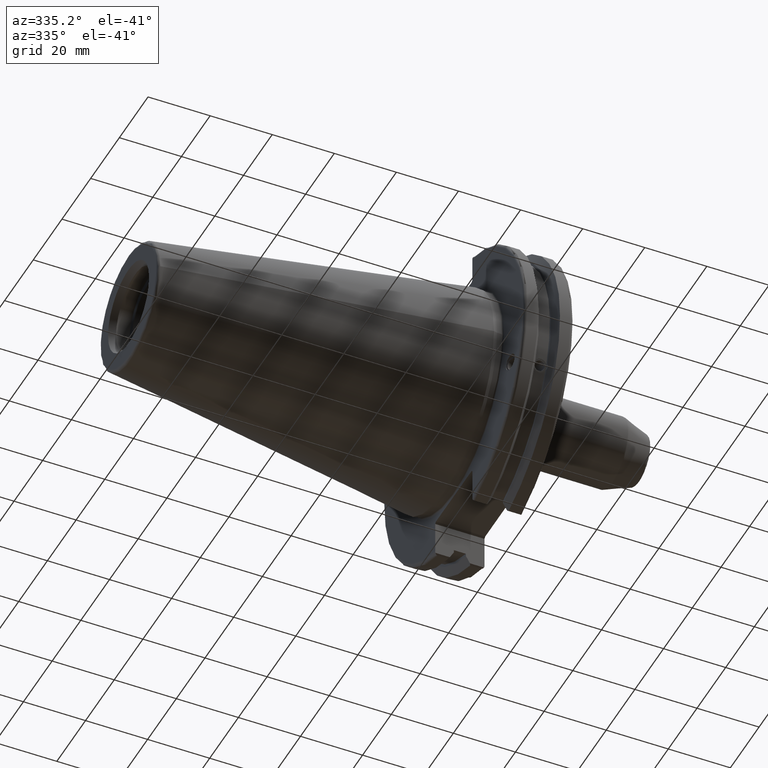
[diagram: clean part render]
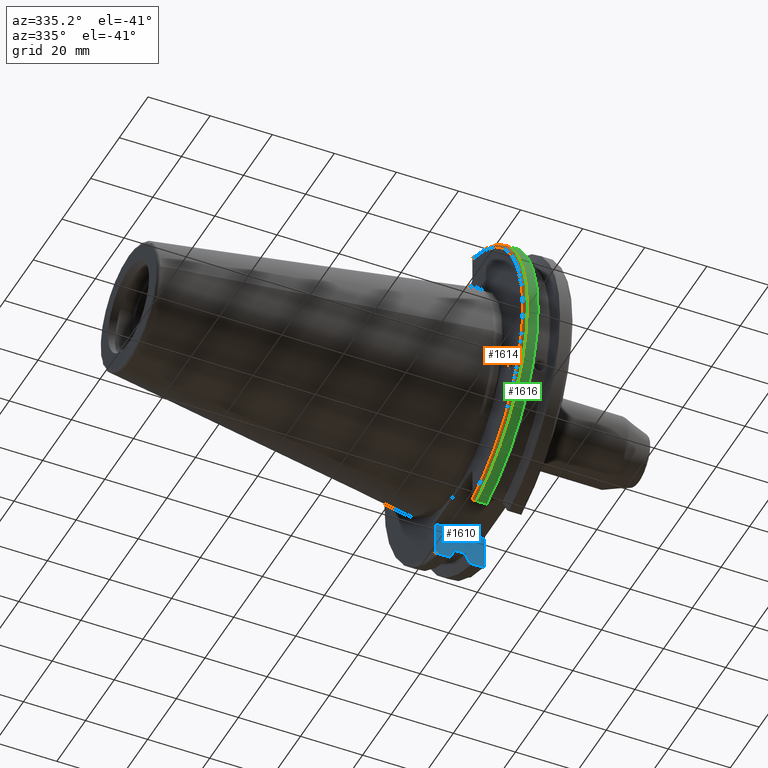
[diagram: same view with three faces highlighted in distinct colors, each labeled with its STEP entity id]
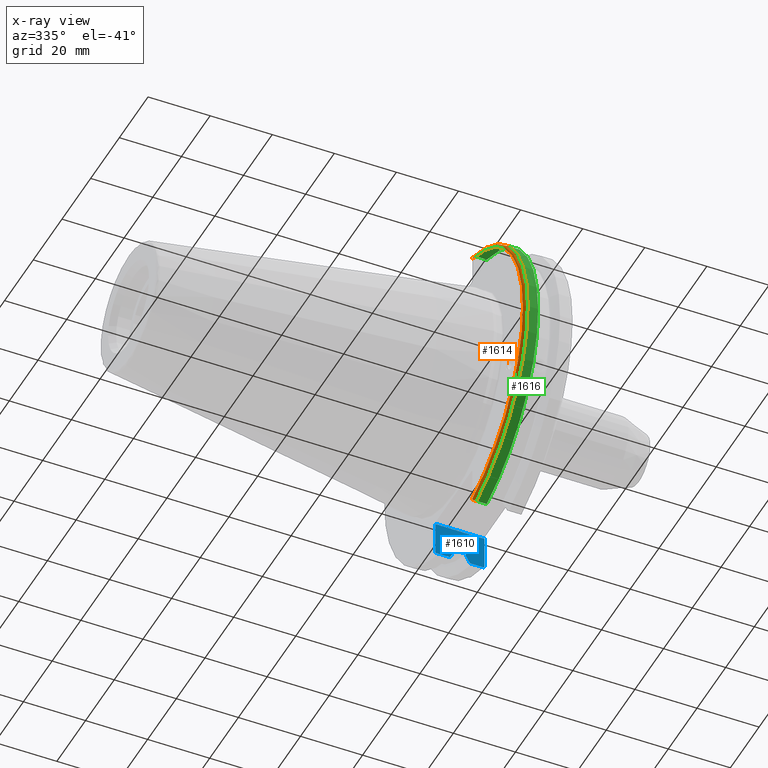
[diagram: x-ray of the same camera — body ghosted, the three highlighted faces saturated]
A machine part, auxiliary view with three faces highlighted in distinct colors.
The next image is the same camera in x-ray (body ghosted, the three faces saturated) — at least one of them is partly hidden behind the body in this view.
Their STEP definitions:

[orange] entity #1614 — the highlighted toroidal blend (fillet) surface has major radius 48.2125 mm and minor (blend) radius 1 mm.
#52=TOROIDAL_SURFACE('',#1788,48.2125,1.);
#131=CIRCLE('',#1776,48.2125);
#136=CIRCLE('',#1789,49.2125);
#243=FACE_OUTER_BOUND('',#350,.T.);
#350=EDGE_LOOP('',(#1369,#1370,#1371,#1372,#1373,#1374));
#628=B_SPLINE_CURVE_WITH_KNOTS('',3,(#3261,#3262,#3263,#3264,#3265,#3266),
 .UNSPECIFIED.,.F.,.F.,(4,2,4),(0.0976892167532858,0.112000071948292,0.150881870548587),
 .UNSPECIFIED.);
#629=B_SPLINE_CURVE_WITH_KNOTS('',3,(#3287,#3288,#3289,#3290,#3291,#3292),
 .UNSPECIFIED.,.F.,.F.,(4,2,4),(0.452859340315922,0.491741138916218,0.506051994111223),
 .UNSPECIFIED.);
#630=B_SPLINE_CURVE_WITH_KNOTS('',3,(#3296,#3297,#3298,#3299,#3300,#3301,
#3302,#3303),.UNSPECIFIED.,.F.,.F.,(4,2,2,4),(-0.104075769062722,-0.0730268503455485,
-0.034363987365627,0.),.UNSPECIFIED.);
#631=B_SPLINE_CURVE_WITH_KNOTS('',3,(#3306,#3307,#3308,#3309,#3310,#3311,
#3312,#3313),.UNSPECIFIED.,.F.,.F.,(4,2,2,4),(0.,0.0343639873656262,0.073026850345548,
0.104075769062723),.UNSPECIFIED.);
#747=VERTEX_POINT('',#3139);
#748=VERTEX_POINT('',#3140);
#773=VERTEX_POINT('',#3260);
#779=VERTEX_POINT('',#3285);
#780=VERTEX_POINT('',#3295);
#781=VERTEX_POINT('',#3304);
#949=EDGE_CURVE('',#747,#748,#131,.T.);
#983=EDGE_CURVE('',#773,#747,#628,.T.);
#993=EDGE_CURVE('',#748,#779,#629,.T.);
#995=EDGE_CURVE('',#779,#780,#630,.T.);
#996=EDGE_CURVE('',#780,#781,#136,.T.);
#997=EDGE_CURVE('',#781,#773,#631,.T.);
#1369=ORIENTED_EDGE('',*,*,#995,.T.);
#1370=ORIENTED_EDGE('',*,*,#996,.T.);
#1371=ORIENTED_EDGE('',*,*,#997,.T.);
#1372=ORIENTED_EDGE('',*,*,#983,.T.);
#1373=ORIENTED_EDGE('',*,*,#949,.T.);
#1374=ORIENTED_EDGE('',*,*,#993,.T.);
#1614=ADVANCED_FACE('',(#243),#52,.T.);
#1776=AXIS2_PLACEMENT_3D('',#3141,#2099,#2100);
#1788=AXIS2_PLACEMENT_3D('',#3294,#2150,#2151);
#1789=AXIS2_PLACEMENT_3D('',#3305,#2152,#2153);
#2099=DIRECTION('center_axis',(1.,0.,0.));
#2100=DIRECTION('ref_axis',(0.,-1.,1.60812264967664E-16));
#2150=DIRECTION('center_axis',(1.,0.,0.));
#2151=DIRECTION('ref_axis',(0.,0.,-1.));
#2152=DIRECTION('center_axis',(-1.,0.,0.));
#2153=DIRECTION('ref_axis',(0.,-1.,1.60812264967664E-16));
#3139=CARTESIAN_POINT('',(3.175,-12.95,46.4407434937254));
#3140=CARTESIAN_POINT('',(3.175,-12.95,-46.4407434937254));
#3141=CARTESIAN_POINT('Origin',(3.175,0.,0.));
#3260=CARTESIAN_POINT('',(3.31949794294344,-12.95,46.9780755322918));
#3261=CARTESIAN_POINT('Ctrl Pts',(3.31949794294344,-12.95,46.9780755322918));
#3262=CARTESIAN_POINT('Ctrl Pts',(3.29341556483839,-12.95,46.9333752207329));
#3263=CARTESIAN_POINT('Ctrl Pts',(3.27115672912336,-12.95,46.887363294568));
#3264=CARTESIAN_POINT('Ctrl Pts',(3.20453530071253,-12.95,46.7230464903732));
#3265=CARTESIAN_POINT('Ctrl Pts',(3.175,-12.95,46.5703494890597));
#3266=CARTESIAN_POINT('Ctrl Pts',(3.175,-12.95,46.4407434937254));
#3285=CARTESIAN_POINT('',(3.31949794294343,-12.95,-46.9780755322917));
#3287=CARTESIAN_POINT('Ctrl Pts',(3.175,-12.95,-46.4407434937254));
#3288=CARTESIAN_POINT('Ctrl Pts',(3.175,-12.95,-46.5703494890597));
#3289=CARTESIAN_POINT('Ctrl Pts',(3.20453530071253,-12.95,-46.7230464903732));
#3290=CARTESIAN_POINT('Ctrl Pts',(3.27115672912336,-12.95,-46.887363294568));
#3291=CARTESIAN_POINT('Ctrl Pts',(3.29341556483838,-12.95,-46.9333752207329));
#3292=CARTESIAN_POINT('Ctrl Pts',(3.31949794294343,-12.95,-46.9780755322917));
#3294=CARTESIAN_POINT('Origin',(4.175,0.,0.));
#3295=CARTESIAN_POINT('',(4.175,-13.4317035994433,-47.3440544806494));
#3296=CARTESIAN_POINT('Ctrl Pts',(3.31949794294343,-12.95,-46.9780755322917));
#3297=CARTESIAN_POINT('Ctrl Pts',(3.36785032278753,-13.0300321736484,-47.0388807469102));
#3298=CARTESIAN_POINT('Ctrl Pts',(3.43235971798504,-13.1083611826073,-47.0983919657547));
#3299=CARTESIAN_POINT('Ctrl Pts',(3.58507512107923,-13.2478194810696,-47.2043467509586));
#3300=CARTESIAN_POINT('Ctrl Pts',(3.70638116490964,-13.3242014686233,-47.2623787015413));
#3301=CARTESIAN_POINT('Ctrl Pts',(3.92661103245834,-13.4067722493645,-47.3251126473446));
#3302=CARTESIAN_POINT('Ctrl Pts',(4.06045337544791,-13.4317035994434,-47.3440544806494));
#3303=CARTESIAN_POINT('Ctrl Pts',(4.175,-13.4317035994434,-47.3440544806494));
#3304=CARTESIAN_POINT('',(4.175,-13.4317035994433,47.3440544806494));
#3305=CARTESIAN_POINT('Origin',(4.175,0.,0.));
#3306=CARTESIAN_POINT('Ctrl Pts',(4.175,-13.4317035994433,47.3440544806494));
#3307=CARTESIAN_POINT('Ctrl Pts',(4.06045337544791,-13.4317035994433,47.3440544806494));
#3308=CARTESIAN_POINT('Ctrl Pts',(3.92661103245835,-13.4067722493645,47.3251126473446));
#3309=CARTESIAN_POINT('Ctrl Pts',(3.70638116490965,-13.3242014686233,47.2623787015413));
#3310=CARTESIAN_POINT('Ctrl Pts',(3.58507512107923,-13.2478194810695,47.2043467509586));
#3311=CARTESIAN_POINT('Ctrl Pts',(3.43235971798504,-13.1083611826073,47.0983919657547));
#3312=CARTESIAN_POINT('Ctrl Pts',(3.36785032278754,-13.0300321736484,47.0388807469102));
#3313=CARTESIAN_POINT('Ctrl Pts',(3.31949794294344,-12.95,46.9780755322918));

[blue] entity #1610 — the highlighted planar face has unit normal (0, 1, 0).
#22=(
BOUNDED_CURVE()
B_SPLINE_CURVE(2,(#3098,#3099,#3100),.UNSPECIFIED.,.F.,.F.)
B_SPLINE_CURVE_WITH_KNOTS((3,3),(0.0558332664477548,0.331657177124506),
 .UNSPECIFIED.)
CURVE()
GEOMETRIC_REPRESENTATION_ITEM()
RATIONAL_B_SPLINE_CURVE((1.00012873636922,1.00038235574886,1.))
REPRESENTATION_ITEM('')
);
#23=(
BOUNDED_CURVE()
B_SPLINE_CURVE(2,(#3216,#3217,#3218),.UNSPECIFIED.,.F.,.F.)
B_SPLINE_CURVE_WITH_KNOTS((3,3),(0.,0.275823910674931),.UNSPECIFIED.)
CURVE()
GEOMETRIC_REPRESENTATION_ITEM()
RATIONAL_B_SPLINE_CURVE((1.,1.00038235574495,1.0001287363679))
REPRESENTATION_ITEM('')
);
#169=PLANE('',#1783);
#239=FACE_OUTER_BOUND('',#346,.T.);
#346=EDGE_LOOP('',(#1327,#1328,#1329,#1330,#1331,#1332,#1333,#1334,#1335,
#1336,#1337,#1338));
#407=LINE('',#2587,#502);
#443=LINE('',#3155,#538);
#449=LINE('',#3202,#544);
#451=LINE('',#3205,#546);
#452=LINE('',#3214,#547);
#453=LINE('',#3220,#548);
#454=LINE('',#3222,#549);
#455=LINE('',#3223,#550);
#502=VECTOR('',#1944,10.);
#538=VECTOR('',#2108,10.);
#544=VECTOR('',#2124,10.);
#546=VECTOR('',#2128,10.);
#547=VECTOR('',#2129,10.);
#548=VECTOR('',#2130,10.);
#549=VECTOR('',#2131,10.);
#550=VECTOR('',#2132,10.);
#620=B_SPLINE_CURVE_WITH_KNOTS('',3,(#3176,#3177,#3178,#3179,#3180,#3181),
 .UNSPECIFIED.,.F.,.F.,(4,2,4),(0.452859340315922,0.491741138916218,0.506051994111223),
 .UNSPECIFIED.);
#623=B_SPLINE_CURVE_WITH_KNOTS('',3,(#3207,#3208,#3209,#3210,#3211,#3212),
 .UNSPECIFIED.,.F.,.F.,(4,2,4),(0.0976892167532858,0.112000071948292,0.150881870548587),
 .UNSPECIFIED.);
#667=VERTEX_POINT('',#2565);
#677=VERTEX_POINT('',#2585);
#734=VERTEX_POINT('',#3093);
#735=VERTEX_POINT('',#3097);
#754=VERTEX_POINT('',#3152);
#755=VERTEX_POINT('',#3154);
#761=VERTEX_POINT('',#3175);
#764=VERTEX_POINT('',#3206);
#765=VERTEX_POINT('',#3213);
#766=VERTEX_POINT('',#3215);
#767=VERTEX_POINT('',#3219);
#768=VERTEX_POINT('',#3221);
#856=EDGE_CURVE('',#677,#667,#407,.T.);
#930=EDGE_CURVE('',#734,#735,#22,.T.);
#956=EDGE_CURVE('',#754,#755,#443,.T.);
#964=EDGE_CURVE('',#667,#761,#620,.T.);
#968=EDGE_CURVE('',#761,#734,#449,.T.);
#970=EDGE_CURVE('',#755,#677,#451,.T.);
#971=EDGE_CURVE('',#764,#754,#623,.T.);
#972=EDGE_CURVE('',#765,#764,#452,.T.);
#973=EDGE_CURVE('',#766,#765,#23,.T.);
#974=EDGE_CURVE('',#767,#766,#453,.T.);
#975=EDGE_CURVE('',#768,#767,#454,.T.);
#976=EDGE_CURVE('',#735,#768,#455,.T.);
#1327=ORIENTED_EDGE('',*,*,#964,.F.);
#1328=ORIENTED_EDGE('',*,*,#856,.F.);
#1329=ORIENTED_EDGE('',*,*,#970,.F.);
#1330=ORIENTED_EDGE('',*,*,#956,.F.);
#1331=ORIENTED_EDGE('',*,*,#971,.F.);
#1332=ORIENTED_EDGE('',*,*,#972,.F.);
#1333=ORIENTED_EDGE('',*,*,#973,.F.);
#1334=ORIENTED_EDGE('',*,*,#974,.F.);
#1335=ORIENTED_EDGE('',*,*,#975,.F.);
#1336=ORIENTED_EDGE('',*,*,#976,.F.);
#1337=ORIENTED_EDGE('',*,*,#930,.F.);
#1338=ORIENTED_EDGE('',*,*,#968,.F.);
#1610=ADVANCED_FACE('',(#239),#169,.F.);
#1783=AXIS2_PLACEMENT_3D('',#3204,#2126,#2127);
#1944=DIRECTION('',(0.,0.,-1.));
#2108=DIRECTION('',(0.,0.,1.));
#2124=DIRECTION('',(-1.,2.63163976207444E-16,0.));
#2126=DIRECTION('center_axis',(2.63163976207444E-16,1.,0.));
#2127=DIRECTION('ref_axis',(1.,-2.63163976207444E-16,0.));
#2128=DIRECTION('',(1.,-2.63163976207444E-16,0.));
#2129=DIRECTION('',(-1.,2.63163976207444E-16,0.));
#2130=DIRECTION('',(0.,0.,-1.));
#2131=DIRECTION('',(-1.,0.,0.));
#2132=DIRECTION('',(0.,0.,1.));
#2565=CARTESIAN_POINT('',(19.05,12.95,-46.4407434937254));
#2585=CARTESIAN_POINT('',(19.05,12.95,-35.806));
#2587=CARTESIAN_POINT('',(19.05,12.95,-17.653));
#3093=CARTESIAN_POINT('',(14.3747103943758,12.95,-46.9780755322918));
#3097=CARTESIAN_POINT('',(13.042,12.95,-44.5791147973604));
#3098=CARTESIAN_POINT('Ctrl Pts',(14.3747103943758,12.95,-46.9780755322918));
#3099=CARTESIAN_POINT('Ctrl Pts',(13.6908955094237,12.95,-45.7494966801829));
#3100=CARTESIAN_POINT('Ctrl Pts',(13.042,12.95,-44.5791147973604));
#3152=CARTESIAN_POINT('',(3.175,12.95,-46.4407434937254));
#3154=CARTESIAN_POINT('',(3.175,12.95,-35.806));
#3155=CARTESIAN_POINT('',(3.175,12.95,-17.653));
#3175=CARTESIAN_POINT('',(18.9055020570566,12.95,-46.9780755322918));
#3176=CARTESIAN_POINT('Ctrl Pts',(19.05,12.95,-46.4407434937254));
#3177=CARTESIAN_POINT('Ctrl Pts',(19.05,12.95,-46.5703494890597));
#3178=CARTESIAN_POINT('Ctrl Pts',(19.0204646992875,12.95,-46.7230464903732));
#3179=CARTESIAN_POINT('Ctrl Pts',(18.9538432708766,12.95,-46.887363294568));
#3180=CARTESIAN_POINT('Ctrl Pts',(18.9315844351616,12.95,-46.9333752207329));
#3181=CARTESIAN_POINT('Ctrl Pts',(18.9055020570566,12.95,-46.9780755322918));
#3202=CARTESIAN_POINT('',(16.8515545170244,12.95,-46.9780755322918));
#3204=CARTESIAN_POINT('Origin',(3.17499999999999,12.95,-35.306));
#3205=CARTESIAN_POINT('',(10.63125,12.95,-35.806));
#3206=CARTESIAN_POINT('',(3.31949794294344,12.95,-46.9780755322918));
#3207=CARTESIAN_POINT('Ctrl Pts',(3.31949794294344,12.95,-46.9780755322918));
#3208=CARTESIAN_POINT('Ctrl Pts',(3.29341556483839,12.95,-46.9333752207329));
#3209=CARTESIAN_POINT('Ctrl Pts',(3.27115672912336,12.95,-46.887363294568));
#3210=CARTESIAN_POINT('Ctrl Pts',(3.20453530071253,12.95,-46.7230464903732));
#3211=CARTESIAN_POINT('Ctrl Pts',(3.175,12.95,-46.5703494890597));
#3212=CARTESIAN_POINT('Ctrl Pts',(3.175,12.95,-46.4407434937254));
#3213=CARTESIAN_POINT('',(7.87928960562424,12.95,-46.9780755322918));
#3214=CARTESIAN_POINT('',(5.38794548297563,12.95,-46.9780755322918));
#3215=CARTESIAN_POINT('',(9.21200000000001,12.95,-44.5791147973604));
#3216=CARTESIAN_POINT('Ctrl Pts',(9.21200000000001,12.95,-44.5791147973604));
#3217=CARTESIAN_POINT('Ctrl Pts',(8.5631044905565,12.95,-45.7494966802185));
#3218=CARTESIAN_POINT('Ctrl Pts',(7.87928960562424,12.95,-46.9780755322917));
#3219=CARTESIAN_POINT('',(9.21200000000001,12.95,-43.7678716897452));
#3220=CARTESIAN_POINT('',(9.212,12.95,-17.653));
#3221=CARTESIAN_POINT('',(13.042,12.95,-43.7678716897452));
#3222=CARTESIAN_POINT('',(11.127,12.95,-43.7678716897452));
#3223=CARTESIAN_POINT('',(13.042,12.95,-17.653));

[green] entity #1616 — the highlighted cylindrical surface (partial cylindrical patch) has radius 49.2125 mm, axis along (1, 0, 0).
#136=CIRCLE('',#1789,49.2125);
#137=CIRCLE('',#1792,49.2125);
#245=FACE_OUTER_BOUND('',#352,.T.);
#352=EDGE_LOOP('',(#1379,#1380,#1381,#1382));
#465=LINE('',#3316,#560);
#466=LINE('',#3322,#561);
#560=VECTOR('',#2156,10.);
#561=VECTOR('',#2159,10.);
#780=VERTEX_POINT('',#3295);
#781=VERTEX_POINT('',#3304);
#782=VERTEX_POINT('',#3315);
#783=VERTEX_POINT('',#3321);
#996=EDGE_CURVE('',#780,#781,#136,.T.);
#998=EDGE_CURVE('',#781,#782,#465,.T.);
#1000=EDGE_CURVE('',#783,#780,#466,.T.);
#1001=EDGE_CURVE('',#782,#783,#137,.T.);
#1379=ORIENTED_EDGE('',*,*,#996,.F.);
#1380=ORIENTED_EDGE('',*,*,#1000,.F.);
#1381=ORIENTED_EDGE('',*,*,#1001,.F.);
#1382=ORIENTED_EDGE('',*,*,#998,.F.);
#1555=CYLINDRICAL_SURFACE('',#1791,49.2125);
#1616=ADVANCED_FACE('',(#245),#1555,.T.);
#1789=AXIS2_PLACEMENT_3D('',#3305,#2152,#2153);
#1791=AXIS2_PLACEMENT_3D('',#3320,#2157,#2158);
#1792=AXIS2_PLACEMENT_3D('',#3323,#2160,#2161);
#2152=DIRECTION('center_axis',(-1.,0.,0.));
#2153=DIRECTION('ref_axis',(0.,-1.,1.60812264967664E-16));
#2156=DIRECTION('',(1.,0.,0.));
#2157=DIRECTION('center_axis',(1.,0.,0.));
#2158=DIRECTION('ref_axis',(0.,-1.,1.22464679914735E-16));
#2159=DIRECTION('',(-1.,0.,0.));
#2160=DIRECTION('center_axis',(1.,0.,0.));
#2161=DIRECTION('ref_axis',(0.,0.,-1.));
#3295=CARTESIAN_POINT('',(4.175,-13.4317035994433,-47.3440544806494));
#3304=CARTESIAN_POINT('',(4.175,-13.4317035994433,47.3440544806494));
#3305=CARTESIAN_POINT('Origin',(4.175,0.,0.));
#3315=CARTESIAN_POINT('',(7.60089096595127,-13.4317035994433,47.3440544806494));
#3316=CARTESIAN_POINT('',(5.38794548297563,-13.4317035994433,47.3440544806494));
#3320=CARTESIAN_POINT('Origin',(5.38794548297563,0.,0.));
#3321=CARTESIAN_POINT('',(7.60089096595127,-13.4317035994433,-47.3440544806494));
#3322=CARTESIAN_POINT('',(5.38794548297563,-13.4317035994433,-47.3440544806494));
#3323=CARTESIAN_POINT('Origin',(7.60089096595127,0.,0.));